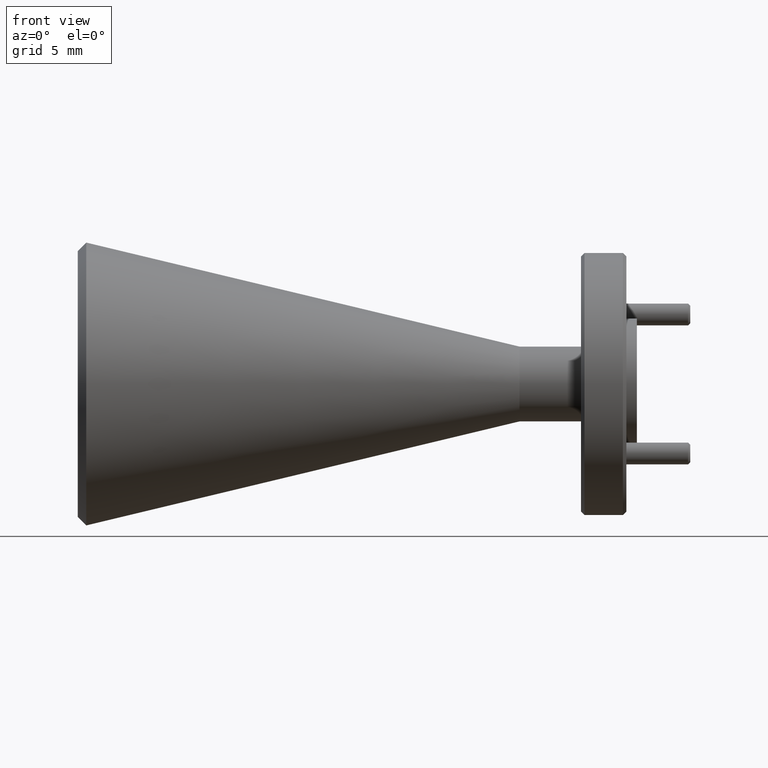
[diagram: clean part render]
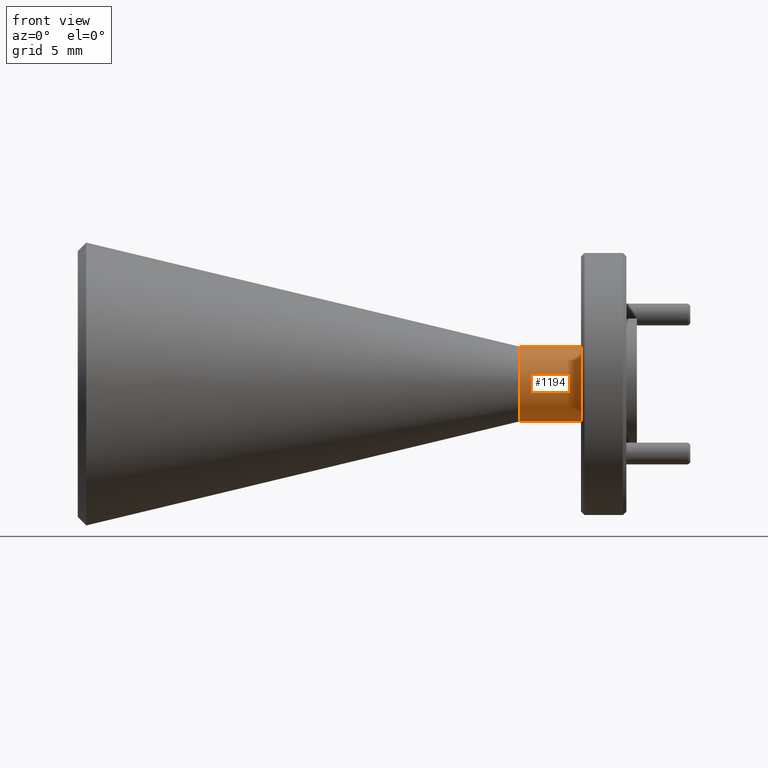
[diagram: same view with one face highlighted and labeled with its STEP entity id]
A machine part, front view. The second image highlights one B-rep face of the part: STEP entity #1194.
In plain terms, the highlighted cylindrical surface (partial cylindrical patch) has radius 2.7178 mm, axis along (1, -0, -0).
Its self-contained STEP definition (entity closure, byte-faithful):
#14 = ORIENTED_EDGE ( 'NONE', *, *, #2064, .F. ) ;
#84 = CYLINDRICAL_SURFACE ( 'NONE', #2083, 0.1069999999999999800 ) ;
#191 = DIRECTION ( 'NONE',  ( 0.0000000000000000000, 0.0000000000000000000, -1.000000000000000000 ) ) ;
#328 = VERTEX_POINT ( 'NONE', #929 ) ;
#373 = DIRECTION ( 'NONE',  ( 0.0000000000000000000, 0.0000000000000000000, -1.000000000000000000 ) ) ;
#417 = DIRECTION ( 'NONE',  ( 1.000000000000000000, -0.0000000000000000000, -0.0000000000000000000 ) ) ;
#419 = LINE ( 'NONE', #1583, #1875 ) ;
#522 = ORIENTED_EDGE ( 'NONE', *, *, #1933, .T. ) ;
#536 = DIRECTION ( 'NONE',  ( 1.000000000000000000, -0.0000000000000000000, -0.0000000000000000000 ) ) ;
#537 = CARTESIAN_POINT ( 'NONE',  ( 1.047337875290413400, 0.6410890014899649500, 1.013399839164500900 ) ) ;
#656 = FACE_OUTER_BOUND ( 'NONE', #1367, .T. ) ;
#677 = CARTESIAN_POINT ( 'NONE',  ( 1.207337875290413400, 0.6410890014899649500, 0.7993998391645010800 ) ) ;
#842 = EDGE_CURVE ( 'NONE', #1340, #328, #2126, .T. ) ;
#901 = EDGE_CURVE ( 'NONE', #1276, #328, #1334, .T. ) ;
#929 = CARTESIAN_POINT ( 'NONE',  ( 1.047337875290413400, 0.6410890014899649500, 0.7993998391645010800 ) ) ;
#981 = VERTEX_POINT ( 'NONE', #1959 ) ;
#982 = CARTESIAN_POINT ( 'NONE',  ( 1.047337875290413400, 0.6410890014899649500, 0.9063998391645010600 ) ) ;
#989 = CARTESIAN_POINT ( 'NONE',  ( 0.8715063555128933500, 0.6410890014899649500, 0.9063998391645010600 ) ) ;
#1000 = DIRECTION ( 'NONE',  ( 1.000000000000000000, -0.0000000000000000000, -0.0000000000000000000 ) ) ;
#1165 = ORIENTED_EDGE ( 'NONE', *, *, #901, .F. ) ;
#1194 = ADVANCED_FACE ( 'NONE', ( #656 ), #84, .T. ) ;
#1276 = VERTEX_POINT ( 'NONE', #537 ) ;
#1285 = AXIS2_PLACEMENT_3D ( 'NONE', #982, #536, #191 ) ;
#1334 = CIRCLE ( 'NONE', #1285, 0.1069999999999999800 ) ;
#1340 = VERTEX_POINT ( 'NONE', #1873 ) ;
#1367 = EDGE_LOOP ( 'NONE', ( #14, #522, #2061, #1165 ) ) ;
#1528 = VECTOR ( 'NONE', #1000, 39.37007874015748100 ) ;
#1583 = CARTESIAN_POINT ( 'NONE',  ( 1.207337875290413400, 0.6410890014899649500, 1.013399839164500900 ) ) ;
#1587 = DIRECTION ( 'NONE',  ( 0.0000000000000000000, 0.0000000000000000000, -1.000000000000000000 ) ) ;
#1712 = AXIS2_PLACEMENT_3D ( 'NONE', #989, #2032, #373 ) ;
#1751 = CARTESIAN_POINT ( 'NONE',  ( 1.207337875290413400, 0.6410890014899649500, 0.9063998391645010600 ) ) ;
#1873 = CARTESIAN_POINT ( 'NONE',  ( 0.8715063555128933500, 0.6410890014899649500, 0.7993998391645010800 ) ) ;
#1875 = VECTOR ( 'NONE', #1906, 39.37007874015748100 ) ;
#1906 = DIRECTION ( 'NONE',  ( 1.000000000000000000, -0.0000000000000000000, -0.0000000000000000000 ) ) ;
#1933 = EDGE_CURVE ( 'NONE', #981, #1340, #2091, .T. ) ;
#1959 = CARTESIAN_POINT ( 'NONE',  ( 0.8715063555128933500, 0.6410890014899649500, 1.013399839164500900 ) ) ;
#2032 = DIRECTION ( 'NONE',  ( 1.000000000000000000, -0.0000000000000000000, -0.0000000000000000000 ) ) ;
#2061 = ORIENTED_EDGE ( 'NONE', *, *, #842, .T. ) ;
#2064 = EDGE_CURVE ( 'NONE', #981, #1276, #419, .T. ) ;
#2083 = AXIS2_PLACEMENT_3D ( 'NONE', #1751, #417, #1587 ) ;
#2091 = CIRCLE ( 'NONE', #1712, 0.1069999999999999800 ) ;
#2126 = LINE ( 'NONE', #677, #1528 ) ;